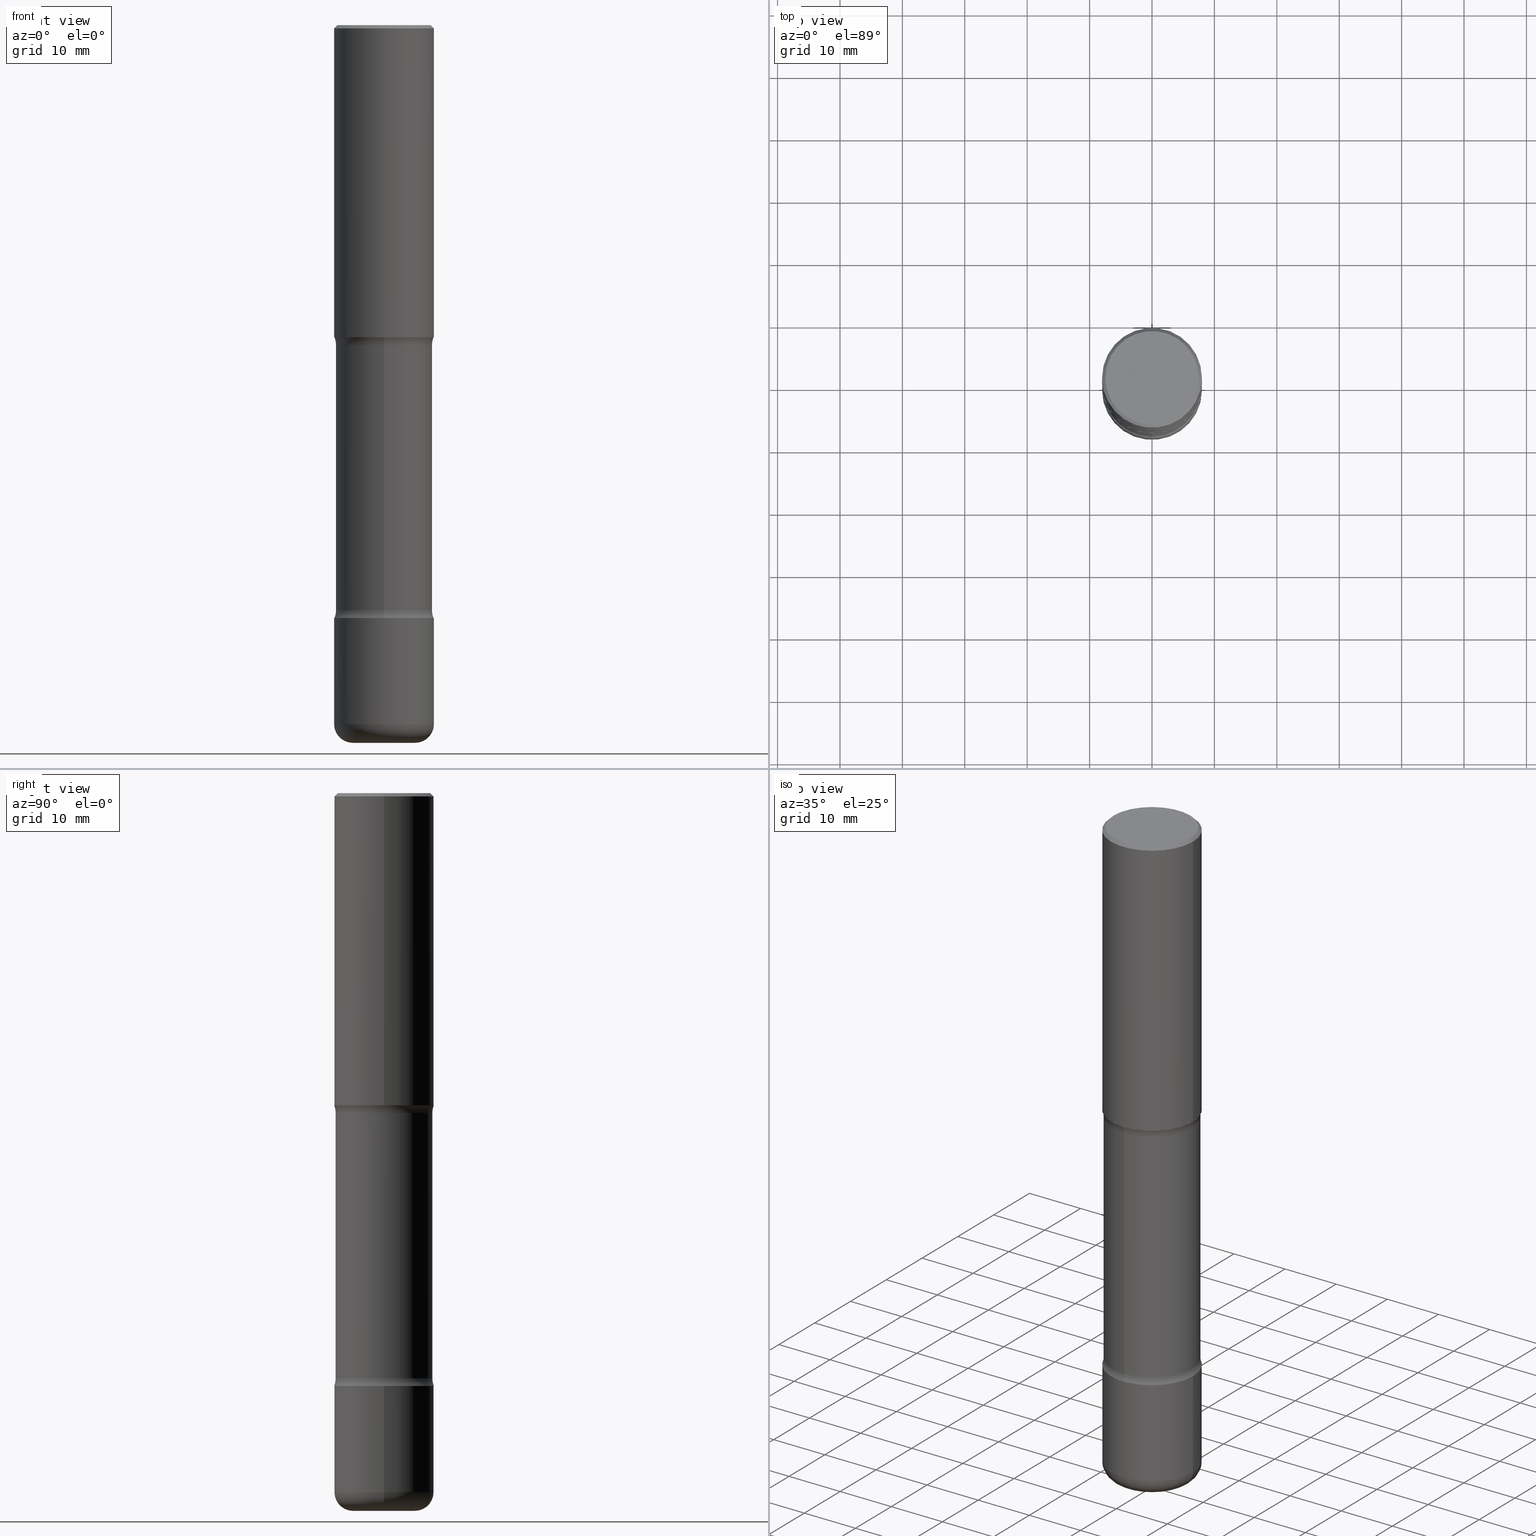
[diagram: canonical four-view strip — front | top / right | iso, engineering-drawing reading convention]
A machine part, canonical four-view strip (front | top / right | iso — engineering-drawing reading convention). The complete STEP part file that produces these views, byte-faithful:
ISO-10303-21;
HEADER;
FILE_DESCRIPTION (( 'STEP AP203' ),
    '1' );
FILE_NAME ('46833.STEP',
    '2024-03-02T05:43:08',
    ( '' ),
    ( '' ),
    'SwSTEP 2.0',
    'SolidWorks 2023',
    '' );
FILE_SCHEMA (( 'CONFIG_CONTROL_DESIGN' ));
ENDSEC;

DATA;
#1 = ADVANCED_FACE ( 'NONE', ( #428 ), #474, .F. ) ;
#2 = DIRECTION ( 'NONE',  ( 6.982962677686265922E-15, 1.000000000000000000, -3.469564049740289220E-15 ) ) ;
#3 = AXIS2_PLACEMENT_3D ( 'NONE', #219, #385, #520 ) ;
#4 = COORDINATED_UNIVERSAL_TIME_OFFSET ( 5, 0, .BEHIND. ) ;
#5 = ADVANCED_FACE ( 'NONE', ( #7 ), #224, .T. ) ;
#6 = CARTESIAN_POINT ( 'NONE',  ( 4.615694768568605168E-29, -1.954727023296045315E-14, -3.740200000000000635 ) ) ;
#7 = FACE_OUTER_BOUND ( 'NONE', #116, .T. ) ;
#8 = CARTESIAN_POINT ( 'NONE',  ( 9.146542428893650504E-29, -1.305883850354113594E-14, -3.740200000000000635 ) ) ;
#9 = DIRECTION ( 'NONE',  ( 2.508997697352003204E-29, -3.400504350852260021E-15, -1.000000000000000000 ) ) ;
#10 = TOROIDAL_SURFACE ( 'NONE', #460, 0.4299999999999999378, 0.1250000000000000000 ) ;
#11 = CYLINDRICAL_SURFACE ( 'NONE', #312, 0.3049999999999999378 ) ;
#12 = MANIFOLD_SOLID_BREP ( 'Body-Move/Copy2[1]', #554 ) ;
#13 = CARTESIAN_POINT ( 'NONE',  ( -0.3149500000000002853, -1.315783261735241693E-14, -4.409500000000000419 ) ) ;
#14 = CARTESIAN_POINT ( 'NONE',  ( 4.813905344975441835E-29, -6.872981015512731707E-15, -1.968500000000000139 ) ) ;
#15 = DIRECTION ( 'NONE',  ( 2.508997697352003204E-29, -3.400504350852260021E-15, -1.000000000000000000 ) ) ;
#16 = CARTESIAN_POINT ( 'NONE',  ( -3.131554243005659264E-46, 4.471029511141341874E-32, 1.280553747030123384E-17 ) ) ;
#17 = VECTOR ( 'NONE', #315, 39.37007874015748143 ) ;
#18 = EDGE_CURVE ( 'NONE', #119, #262, #395, .T. ) ;
#19 = FACE_OUTER_BOUND ( 'NONE', #172, .T. ) ;
#20 = DIRECTION ( 'NONE',  ( 1.000000000000000000, -6.982962677686266711E-15, 0.000000000000000000 ) ) ;
#21 = CARTESIAN_POINT ( 'NONE',  ( 0.000000000000000000, 0.000000000000000000, 0.000000000000000000 ) ) ;
#22 = AXIS2_PLACEMENT_3D ( 'NONE', #50, #529, #229 ) ;
#23 = VECTOR ( 'NONE', #220, 39.37007874015748143 ) ;
#24 = AXIS2_PLACEMENT_3D ( 'NONE', #71, #161, #383 ) ;
#25 = LOCAL_TIME ( 0, 43, 8.000000000000000000, #256 ) ;
#26 = EDGE_LOOP ( 'NONE', ( #548, #381, #397, #86 ) ) ;
#27 = CALENDAR_DATE ( 2024, 2, 3 ) ;
#28 = ORIENTED_EDGE ( 'NONE', *, *, #409, .T. ) ;
#29 = APPROVAL ( #549, 'UNSPECIFIED' ) ;
#30 = ORIENTED_EDGE ( 'NONE', *, *, #506, .F. ) ;
#31 = CARTESIAN_POINT ( 'NONE',  ( -0.1968500000000003303, -1.399698358828509276E-14, -4.409500000000000419 ) ) ;
#32 = ADVANCED_FACE ( 'NONE', ( #145 ), #174, .F. ) ;
#33 = PERSON_AND_ORGANIZATION ( #327, #394 ) ;
#34 = EDGE_LOOP ( 'NONE', ( #329, #30, #53, #435 ) ) ;
#35 = CIRCLE ( 'NONE', #413, 0.2949499999999998234 ) ;
#36 = DIRECTION ( 'NONE',  ( 0.000000000000000000, 0.000000000000000000, 1.000000000000000000 ) ) ;
#37 = ORIENTED_EDGE ( 'NONE', *, *, #409, .F. ) ;
#38 = CARTESIAN_POINT ( 'NONE',  ( -2.950014139041668531E-15, -0.4300000000000129829, -3.691327743043725906 ) ) ;
#39 = FACE_OUTER_BOUND ( 'NONE', #243, .T. ) ;
#40 = APPROVAL_ROLE ( '' ) ;
#41 = ORIENTED_EDGE ( 'NONE', *, *, #285, .F. ) ;
#42 = ORIENTED_EDGE ( 'NONE', *, *, #45, .F. ) ;
#43 = LINE ( 'NONE', #318, #110 ) ;
#44 = CARTESIAN_POINT ( 'NONE',  ( 2.129803616694400804E-15, 0.3049999999999870037, -3.691327743043728571 ) ) ;
#45 = EDGE_CURVE ( 'NONE', #387, #462, #411, .T. ) ;
#46 = DIRECTION ( 'NONE',  ( -6.982962677686265133E-15, -1.000000000000000000, 0.000000000000000000 ) ) ;
#47 = EDGE_CURVE ( 'NONE', #517, #195, #166, .T. ) ;
#48 = CIRCLE ( 'NONE', #201, 0.1250000000000000278 ) ;
#49 = CC_DESIGN_PERSON_AND_ORGANIZATION_ASSIGNMENT ( #457, #544, ( #244 ) ) ;
#50 = CARTESIAN_POINT ( 'NONE',  ( 9.027026849019219293E-29, -1.288820193039116093E-14, -3.691327743043727239 ) ) ;
#51 = CARTESIAN_POINT ( 'NONE',  ( 1.107210456688382522E-28, -1.580803090974622705E-14, -4.527600000000000513 ) ) ;
#52 = DATE_AND_TIME ( #532, #270 ) ;
#53 = ORIENTED_EDGE ( 'NONE', *, *, #259, .T. ) ;
#54 = DIRECTION ( 'NONE',  ( 1.000000000000000000, -6.982962677686269866E-15, 0.000000000000000000 ) ) ;
#55 = CC_DESIGN_PERSON_AND_ORGANIZATION_ASSIGNMENT ( #204, #127, ( #114 ) ) ;
#56 = CIRCLE ( 'NONE', #370, 0.3149500000000002298 ) ;
#57 = AXIS2_PLACEMENT_3D ( 'NONE', #97, #458, #125 ) ;
#58 = CARTESIAN_POINT ( 'NONE',  ( 4.813905344975441835E-29, -6.872981015512731707E-15, -1.968500000000000139 ) ) ;
#59 = CIRCLE ( 'NONE', #335, 0.2949499999999998234 ) ;
#60 = EDGE_CURVE ( 'NONE', #439, #558, #108, .T. ) ;
#61 = DIRECTION ( 'NONE',  ( 1.000000000000000000, -6.982962677686263555E-15, 4.883557194083111780E-29 ) ) ;
#62 = DIRECTION ( 'NONE',  ( 6.982962677686266711E-15, 1.000000000000000000, -3.582751467100674095E-15 ) ) ;
#63 = EDGE_CURVE ( 'NONE', #337, #340, #186, .T. ) ;
#64 = AXIS2_PLACEMENT_3D ( 'NONE', #343, #9, #523 ) ;
#65 = DIRECTION ( 'NONE',  ( 2.508997697352003204E-29, -3.400504350852260021E-15, -1.000000000000000000 ) ) ;
#66 = AXIS2_PLACEMENT_3D ( 'NONE', #276, #320, #366 ) ;
#67 = AXIS2_PLACEMENT_3D ( 'NONE', #317, #379, #505 ) ;
#68 = ORIENTED_EDGE ( 'NONE', *, *, #102, .F. ) ;
#69 = APPLICATION_PROTOCOL_DEFINITION ( 'international standard', 'config_control_design', 1994, #142 ) ;
#70 = EDGE_LOOP ( 'NONE', ( #128, #513, #123, #519 ) ) ;
#71 = CARTESIAN_POINT ( 'NONE',  ( 0.1968500000000003303, -1.677028316673139768E-14, -4.409500000000000419 ) ) ;
#72 = CONICAL_SURFACE ( 'NONE', #214, 0.3149499999999998967, 0.7853981633974477239 ) ;
#73 = CARTESIAN_POINT ( 'NONE',  ( -2.126582866859184041E-15, -0.3050000000000072098, -2.017372256956273535 ) ) ;
#74 = VERTEX_POINT ( 'NONE', #44 ) ;
#75 = APPROVAL_DATE_TIME ( #464, #29 ) ;
#76 = EDGE_LOOP ( 'NONE', ( #467, #477, #510, #68 ) ) ;
#77 = CYLINDRICAL_SURFACE ( 'NONE', #484, 0.3149500000000002853 ) ;
#78 = ORIENTED_EDGE ( 'NONE', *, *, #451, .T. ) ;
#79 = PERSON_AND_ORGANIZATION ( #327, #394 ) ;
#80 = ORIENTED_EDGE ( 'NONE', *, *, #18, .T. ) ;
#81 = ORIENTED_EDGE ( 'NONE', *, *, #471, .F. ) ;
#82 = DIRECTION ( 'NONE',  ( 1.000000000000000000, -6.982962677686267499E-15, 4.876176775795936353E-29 ) ) ;
#83 = CIRCLE ( 'NONE', #403, 0.3149500000000002298 ) ;
#84 = AXIS2_PLACEMENT_3D ( 'NONE', #363, #536, #61 ) ;
#85 = APPROVAL_DATE_TIME ( #52, #307 ) ;
#86 = ORIENTED_EDGE ( 'NONE', *, *, #202, .F. ) ;
#87 = DIRECTION ( 'NONE',  ( 2.508997697352003204E-29, -3.400504350852260021E-15, -1.000000000000000000 ) ) ;
#88 = EDGE_CURVE ( 'NONE', #470, #287, #83, .T. ) ;
#89 = CARTESIAN_POINT ( 'NONE',  ( 2.296867071415666507E-29, -2.837467045875745410E-14, -4.527600000000000513 ) ) ;
#90 = DIRECTION ( 'NONE',  ( -2.508997697352002923E-29, 3.400504350852260021E-15, 1.000000000000000000 ) ) ;
#91 = CIRCLE ( 'NONE', #436, 0.3149500000000001743 ) ;
#92 = VERTEX_POINT ( 'NONE', #305 ) ;
#93 = CARTESIAN_POINT ( 'NONE',  ( 0.2949499999999998234, -2.127023677808859286E-15, 1.280553747031587399E-17 ) ) ;
#94 = EDGE_CURVE ( 'NONE', #439, #74, #268, .T. ) ;
#95 = CARTESIAN_POINT ( 'NONE',  ( -2.160713844398053432E-15, -0.3149500000000131639, -3.740199999999999747 ) ) ;
#96 = EDGE_LOOP ( 'NONE', ( #212, #222, #273, #426 ) ) ;
#97 = CARTESIAN_POINT ( 'NONE',  ( 4.813905344975441835E-29, -6.872981015512731707E-15, -1.968500000000000139 ) ) ;
#98 = ADVANCED_FACE ( 'NONE', ( #443 ), #543, .F. ) ;
#99 = CIRCLE ( 'NONE', #372, 0.3049999999999998823 ) ;
#100 = VECTOR ( 'NONE', #534, 39.37007874015748143 ) ;
#101 = DIRECTION ( 'NONE',  ( -2.445468806185136597E-29, 3.491481338843145583E-15, 1.000000000000000000 ) ) ;
#102 = EDGE_CURVE ( 'NONE', #287, #470, #56, .T. ) ;
#103 = DIRECTION ( 'NONE',  ( 2.445468806185136597E-29, -3.491481338843145583E-15, -1.000000000000000000 ) ) ;
#104 = DIRECTION ( 'NONE',  ( -2.445468806185136597E-29, 3.491481338843145583E-15, 1.000000000000000000 ) ) ;
#105 = CARTESIAN_POINT ( 'NONE',  ( 1.078329470087336022E-28, -1.539568696362885450E-14, -4.409500000000000419 ) ) ;
#106 = ORIENTED_EDGE ( 'NONE', *, *, #259, .F. ) ;
#107 = CYLINDRICAL_SURFACE ( 'NONE', #167, 0.3149500000000000077 ) ;
#108 = CIRCLE ( 'NONE', #433, 0.3049999999999999933 ) ;
#109 = DIRECTION ( 'NONE',  ( 6.860497997771529985E-15, 1.000000000000000000, 0.000000000000000000 ) ) ;
#110 = VECTOR ( 'NONE', #188, 39.37007874015748143 ) ;
#111 = AXIS2_PLACEMENT_3D ( 'NONE', #516, #211, #286 ) ;
#112 =( LENGTH_UNIT ( ) NAMED_UNIT ( * ) SI_UNIT ( $, .METRE. ) );
#113 = FACE_OUTER_BOUND ( 'NONE', #76, .T. ) ;
#114 = PRODUCT_DEFINITION ( 'UNKNOWN', '', #278, #497 ) ;
#115 = APPROVAL_ROLE ( '' ) ;
#116 = EDGE_LOOP ( 'NONE', ( #126, #437, #218, #297 ) ) ;
#117 = EDGE_CURVE ( 'NONE', #488, #170, #267, .T. ) ;
#118 = EDGE_LOOP ( 'NONE', ( #465, #80, #189, #552 ) ) ;
#119 = VERTEX_POINT ( 'NONE', #140 ) ;
#120 = CIRCLE ( 'NONE', #442, 0.3049999999999998823 ) ;
#121 = APPROVAL_PERSON_ORGANIZATION ( #461, #29, #247 ) ;
#122 = PERSON_AND_ORGANIZATION ( #327, #394 ) ;
#123 = ORIENTED_EDGE ( 'NONE', *, *, #508, .T. ) ;
#124 = EDGE_CURVE ( 'NONE', #518, #351, #325, .T. ) ;
#125 = DIRECTION ( 'NONE',  ( 6.982962677686265922E-15, 1.000000000000000000, -3.400504350852260021E-15 ) ) ;
#126 = ORIENTED_EDGE ( 'NONE', *, *, #63, .T. ) ;
#127 = PERSON_AND_ORGANIZATION_ROLE ( 'creator' ) ;
#128 = ORIENTED_EDGE ( 'NONE', *, *, #282, .F. ) ;
#129 = CARTESIAN_POINT ( 'NONE',  ( 0.3149499999999998967, -2.230543471175006266E-15, -0.02000000000000006981 ) ) ;
#130 = EDGE_LOOP ( 'NONE', ( #515, #376, #265, #388 ) ) ;
#131 = EDGE_LOOP ( 'NONE', ( #81, #504 ) ) ;
#132 = CARTESIAN_POINT ( 'NONE',  ( 2.199284095337382168E-15, 0.3149499999999870181, -3.740200000000001967 ) ) ;
#133 = ADVANCED_FACE ( 'NONE', ( #441 ), #357, .F. ) ;
#134 = CARTESIAN_POINT ( 'NONE',  ( 4.823971588662791399E-29, -7.200355267551965208E-15, -2.017372256956274423 ) ) ;
#135 = CC_DESIGN_APPROVAL ( #29, ( #114 ) ) ;
#136 = ORIENTED_EDGE ( 'NONE', *, *, #492, .T. ) ;
#137 = ADVANCED_BREP_SHAPE_REPRESENTATION ( '46833', ( #12, #198, #217, #374 ), #438 ) ;
#138 = DIRECTION ( 'NONE',  ( -6.982962677686265922E-15, -1.000000000000000000, 3.400504350852260021E-15 ) ) ;
#139 = FACE_OUTER_BOUND ( 'NONE', #34, .T. ) ;
#140 = CARTESIAN_POINT ( 'NONE',  ( -0.3149500000000001743, -1.233550974868359743E-15, -1.968500000000000139 ) ) ;
#141 = AXIS2_PLACEMENT_3D ( 'NONE', #171, #503, #418 ) ;
#142 = APPLICATION_CONTEXT ( 'configuration controlled 3d designs of mechanical parts and assemblies' ) ;
#143 = AXIS2_PLACEMENT_3D ( 'NONE', #514, #103, #498 ) ;
#144 = DIRECTION ( 'NONE',  ( 2.508997697352003204E-29, -3.400504350852260021E-15, -1.000000000000000000 ) ) ;
#145 = FACE_OUTER_BOUND ( 'NONE', #216, .T. ) ;
#146 = DIRECTION ( 'NONE',  ( 1.000000000000000000, -6.982962677686267499E-15, 4.876053491004737710E-29 ) ) ;
#147 = CC_DESIGN_DATE_AND_TIME_ASSIGNMENT ( #425, #246, ( #114 ) ) ;
#148 = CARTESIAN_POINT ( 'NONE',  ( -0.3149499999999998967, 2.129454468560425784E-15, -0.02000000000000006981 ) ) ;
#149 = EDGE_CURVE ( 'NONE', #195, #74, #345, .T. ) ;
#150 = CIRCLE ( 'NONE', #450, 0.1968500000000003303 ) ;
#151 = APPROVAL_PERSON_ORGANIZATION ( #314, #307, #40 ) ;
#152 = FACE_OUTER_BOUND ( 'NONE', #559, .T. ) ;
#153 = CC_DESIGN_PERSON_AND_ORGANIZATION_ASSIGNMENT ( #33, #469, ( #278 ) ) ;
#154 = FACE_OUTER_BOUND ( 'NONE', #96, .T. ) ;
#155 = DIRECTION ( 'NONE',  ( 2.508997697352003204E-29, -3.400504350852260021E-15, -1.000000000000000000 ) ) ;
#156 = EDGE_LOOP ( 'NONE', ( #430, #344 ) ) ;
#157 = AXIS2_PLACEMENT_3D ( 'NONE', #530, #90, #138 ) ;
#158 = COORDINATED_UNIVERSAL_TIME_OFFSET ( 5, 0, .BEHIND. ) ;
#159 = ADVANCED_FACE ( 'NONE', ( #354 ), #352, .F. ) ;
#160 = ORIENTED_EDGE ( 'NONE', *, *, #416, .F. ) ;
#161 = DIRECTION ( 'NONE',  ( -6.982962677686266711E-15, -1.000000000000000000, 3.491481338843145583E-15 ) ) ;
#162 = EDGE_CURVE ( 'NONE', #517, #92, #48, .T. ) ;
#163 = COORDINATED_UNIVERSAL_TIME_OFFSET ( 5, 0, .BEHIND. ) ;
#164 = ORIENTED_EDGE ( 'NONE', *, *, #124, .F. ) ;
#165 = VERTEX_POINT ( 'NONE', #93 ) ;
#166 = CIRCLE ( 'NONE', #64, 0.3149500000000002298 ) ;
#167 = AXIS2_PLACEMENT_3D ( 'NONE', #232, #447, #192 ) ;
#168 = AXIS2_PLACEMENT_3D ( 'NONE', #238, #236, #197 ) ;
#169 =( NAMED_UNIT ( * ) SI_UNIT ( $, .STERADIAN. ) SOLID_ANGLE_UNIT ( ) );
#170 = VERTEX_POINT ( 'NONE', #440 ) ;
#171 = CARTESIAN_POINT ( 'NONE',  ( 1.078329470087336022E-28, -1.539568696362885450E-14, -4.409500000000000419 ) ) ;
#172 = EDGE_LOOP ( 'NONE', ( #227, #339, #378, #298 ) ) ;
#173 = DIRECTION ( 'NONE',  ( -2.445468806185136597E-29, 3.491481338843145583E-15, 1.000000000000000000 ) ) ;
#174 = PLANE ( 'NONE',  #449 ) ;
#175 = DIRECTION ( 'NONE',  ( 6.982962677686265922E-15, 1.000000000000000000, -3.400504350852260021E-15 ) ) ;
#176 = CC_DESIGN_PERSON_AND_ORGANIZATION_ASSIGNMENT ( #122, #377, ( #399 ) ) ;
#177 = AXIS2_PLACEMENT_3D ( 'NONE', #410, #245, #109 ) ;
#178 = FACE_OUTER_BOUND ( 'NONE', #338, .T. ) ;
#179 = DIRECTION ( 'NONE',  ( 6.982962677686266711E-15, 1.000000000000000000, -3.582751467100673306E-15 ) ) ;
#180 = FACE_OUTER_BOUND ( 'NONE', #257, .T. ) ;
#181 = DIRECTION ( 'NONE',  ( 2.508997697352003204E-29, -3.400504350852260021E-15, -1.000000000000000000 ) ) ;
#182 = DIRECTION ( 'NONE',  ( 2.438088387897960049E-29, -3.491481338843145188E-15, -1.000000000000000000 ) ) ;
#183 = DIRECTION ( 'NONE',  ( 1.000000000000000000, -6.982962677686265922E-15, 0.000000000000000000 ) ) ;
#184 = EDGE_CURVE ( 'NONE', #558, #92, #271, .T. ) ;
#185 = DIRECTION ( 'NONE',  ( 1.000000000000000000, -6.982962677686264344E-15, 0.000000000000000000 ) ) ;
#186 = CIRCLE ( 'NONE', #324, 0.3149500000000002853 ) ;
#187 = CIRCLE ( 'NONE', #66, 0.3149500000000002298 ) ;
#188 = DIRECTION ( 'NONE',  ( -2.445468806185136877E-29, 3.491481338843145188E-15, 1.000000000000000000 ) ) ;
#189 = ORIENTED_EDGE ( 'NONE', *, *, #492, .F. ) ;
#190 = FACE_OUTER_BOUND ( 'NONE', #131, .T. ) ;
#191 = EDGE_CURVE ( 'NONE', #262, #170, #277, .T. ) ;
#192 = DIRECTION ( 'NONE',  ( 1.000000000000000000, -6.982962677686266711E-15, 4.876176775795936353E-29 ) ) ;
#193 = AXIS2_PLACEMENT_3D ( 'NONE', #496, #240, #495 ) ;
#194 = CC_DESIGN_SECURITY_CLASSIFICATION ( #244, ( #278 ) ) ;
#195 = VERTEX_POINT ( 'NONE', #132 ) ;
#196 = CARTESIAN_POINT ( 'NONE',  ( 0.3149500000000002853, -1.759497105896614279E-14, -4.409500000000000419 ) ) ;
#197 = DIRECTION ( 'NONE',  ( 6.982962677686266711E-15, 1.000000000000000000, -3.582751467100674095E-15 ) ) ;
#198 = MANIFOLD_SOLID_BREP ( 'Body-Move/Copy2[2]', #538 ) ;
#199 = CARTESIAN_POINT ( 'NONE',  ( 0.000000000000000000, 0.000000000000000000, 0.000000000000000000 ) ) ;
#200 = DIRECTION ( 'NONE',  ( -2.445468806185136597E-29, 3.491481338843145583E-15, 1.000000000000000000 ) ) ;
#201 = AXIS2_PLACEMENT_3D ( 'NONE', #38, #485, #230 ) ;
#202 = EDGE_CURVE ( 'NONE', #92, #74, #99, .T. ) ;
#203 = LOCAL_TIME ( 0, 43, 8.000000000000000000, #429 ) ;
#204 = PERSON_AND_ORGANIZATION ( #327, #394 ) ;
#205 = ORIENTED_EDGE ( 'NONE', *, *, #102, .T. ) ;
#206 = CARTESIAN_POINT ( 'NONE',  ( 2.129803616694359388E-15, 0.3049999999999927769, -2.017372256956275756 ) ) ;
#207 = EDGE_CURVE ( 'NONE', #340, #287, #43, .T. ) ;
#208 = ORIENTED_EDGE ( 'NONE', *, *, #45, .T. ) ;
#209 = ORIENTED_EDGE ( 'NONE', *, *, #228, .F. ) ;
#210 = CARTESIAN_POINT ( 'NONE',  ( -0.1968500000000003303, -1.378358007587744270E-14, -4.527600000000000513 ) ) ;
#211 = DIRECTION ( 'NONE',  ( 2.438088387897960049E-29, -3.491481338843145188E-15, -1.000000000000000000 ) ) ;
#212 = ORIENTED_EDGE ( 'NONE', *, *, #18, .F. ) ;
#213 = CLOSED_SHELL ( 'NONE', ( #380, #1, #483, #98, #390, #159, #133, #531 ) ) ;
#214 = AXIS2_PLACEMENT_3D ( 'NONE', #288, #466, #369 ) ;
#215 = APPLICATION_PROTOCOL_DEFINITION ( 'international standard', 'config_control_design', 1994, #509 ) ;
#216 = EDGE_LOOP ( 'NONE', ( #405, #205 ) ) ;
#217 = MANIFOLD_SOLID_BREP ( 'Body-Move/Copy2[4]', #213 ) ;
#218 = ORIENTED_EDGE ( 'NONE', *, *, #88, .F. ) ;
#219 = CARTESIAN_POINT ( 'NONE',  ( 4.890937612370289799E-31, -6.982962677686315028E-17, -0.02000000000000006981 ) ) ;
#220 = DIRECTION ( 'NONE',  ( -2.445468806185136877E-29, 3.491481338843145188E-15, 1.000000000000000000 ) ) ;
#221 = ORIENTED_EDGE ( 'NONE', *, *, #371, .F. ) ;
#222 = ORIENTED_EDGE ( 'NONE', *, *, #255, .T. ) ;
#223 = CARTESIAN_POINT ( 'NONE',  ( 3.002673951405185326E-15, 0.4299999999999871703, -3.691327743043729015 ) ) ;
#224 = CYLINDRICAL_SURFACE ( 'NONE', #311, 0.3149500000000002853 ) ;
#225 = CIRCLE ( 'NONE', #313, 0.3149499999999998967 ) ;
#226 = CARTESIAN_POINT ( 'NONE',  ( 4.838038961945526824E-29, -7.180209988345925109E-15, -2.017372256956274423 ) ) ;
#227 = ORIENTED_EDGE ( 'NONE', *, *, #60, .T. ) ;
#228 = EDGE_CURVE ( 'NONE', #558, #439, #365, .T. ) ;
#229 = DIRECTION ( 'NONE',  ( 6.982962677686265922E-15, 1.000000000000000000, -3.400504350852260021E-15 ) ) ;
#230 = DIRECTION ( 'NONE',  ( 6.860497997771529985E-15, 1.000000000000000000, 0.000000000000000000 ) ) ;
#231 = DATE_TIME_ROLE ( 'classification_date' ) ;
#232 = CARTESIAN_POINT ( 'NONE',  ( 0.000000000000000000, 0.000000000000000000, 0.000000000000000000 ) ) ;
#233 = VECTOR ( 'NONE', #303, 39.37007874015748143 ) ;
#234 = CIRCLE ( 'NONE', #242, 0.3149500000000001743 ) ;
#235 = CONICAL_SURFACE ( 'NONE', #143, 0.3149499999999998967, 0.7853981633974477239 ) ;
#236 = DIRECTION ( 'NONE',  ( 2.508997697352003204E-29, -3.400504350852260021E-15, -1.000000000000000000 ) ) ;
#237 = CARTESIAN_POINT ( 'NONE',  ( -0.3149499999999998967, 2.129454468560425784E-15, -0.02000000000000006981 ) ) ;
#238 = CARTESIAN_POINT ( 'NONE',  ( 1.112212721578861617E-28, -1.573639562940220266E-14, -4.527600000000000513 ) ) ;
#239 = LINE ( 'NONE', #408, #419 ) ;
#240 = DIRECTION ( 'NONE',  ( 2.508997697352003204E-29, -3.400504350852260021E-15, -1.000000000000000000 ) ) ;
#241 = DIRECTION ( 'NONE',  ( -2.445468806185136597E-29, 3.491481338843145583E-15, 1.000000000000000000 ) ) ;
#242 = AXIS2_PLACEMENT_3D ( 'NONE', #14, #101, #54 ) ;
#243 = EDGE_LOOP ( 'NONE', ( #333, #258, #28, #160 ) ) ;
#244 = SECURITY_CLASSIFICATION ( '', '', #501 ) ;
#245 = DIRECTION ( 'NONE',  ( 1.000000000000000000, -6.860497997771530774E-15, 4.841913026395534193E-29 ) ) ;
#246 = DATE_TIME_ROLE ( 'creation_date' ) ;
#247 = APPROVAL_ROLE ( '' ) ;
#248 = EDGE_CURVE ( 'NONE', #337, #470, #239, .T. ) ;
#249 = AXIS2_PLACEMENT_3D ( 'NONE', #341, #181, #300 ) ;
#250 = ORIENTED_EDGE ( 'NONE', *, *, #444, .F. ) ;
#251 = EDGE_CURVE ( 'NONE', #74, #92, #120, .T. ) ;
#252 =( CONVERSION_BASED_UNIT ( 'INCH', #557 ) LENGTH_UNIT ( ) NAMED_UNIT ( #528 ) );
#253 = PERSON_AND_ORGANIZATION ( #327, #394 ) ;
#254 = CARTESIAN_POINT ( 'NONE',  ( 2.199284095337339175E-15, 0.3149499999999932909, -1.968500000000001249 ) ) ;
#255 = EDGE_CURVE ( 'NONE', #119, #488, #234, .T. ) ;
#256 = COORDINATED_UNIVERSAL_TIME_OFFSET ( 5, 0, .BEHIND. ) ;
#257 = EDGE_LOOP ( 'NONE', ( #250, #164 ) ) ;
#258 = ORIENTED_EDGE ( 'NONE', *, *, #124, .T. ) ;
#259 = EDGE_CURVE ( 'NONE', #431, #262, #407, .T. ) ;
#260 = AXIS2_PLACEMENT_3D ( 'NONE', #89, #359, #386 ) ;
#261 = DIRECTION ( 'NONE',  ( 1.000000000000000000, -6.982962677686267499E-15, 4.876053491004737710E-29 ) ) ;
#262 = VERTEX_POINT ( 'NONE', #148 ) ;
#263 = DIRECTION ( 'NONE',  ( 6.982962677686266711E-15, 1.000000000000000000, -3.582751467100674095E-15 ) ) ;
#264 = CARTESIAN_POINT ( 'NONE',  ( 4.890937612370289799E-31, -6.982962677686315028E-17, -0.02000000000000006981 ) ) ;
#265 = ORIENTED_EDGE ( 'NONE', *, *, #149, .T. ) ;
#266 = DIRECTION ( 'NONE',  ( 1.000000000000000000, -6.982962677686269866E-15, 0.000000000000000000 ) ) ;
#267 = LINE ( 'NONE', #398, #17 ) ;
#268 = LINE ( 'NONE', #482, #233 ) ;
#269 = AXIS2_PLACEMENT_3D ( 'NONE', #31, #553, #342 ) ;
#270 = LOCAL_TIME ( 0, 43, 8.000000000000000000, #4 ) ;
#271 = LINE ( 'NONE', #400, #100 ) ;
#272 = DIRECTION ( 'NONE',  ( 1.000000000000000000, -6.982962677686267499E-15, 4.876176775795936353E-29 ) ) ;
#273 = ORIENTED_EDGE ( 'NONE', *, *, #117, .T. ) ;
#274 = CARTESIAN_POINT ( 'NONE',  ( 4.813905344975441835E-29, -6.872981015512731707E-15, -1.968500000000000139 ) ) ;
#275 = CARTESIAN_POINT ( 'NONE',  ( 1.078329470087336022E-28, -1.539568696362885450E-14, -4.409500000000000419 ) ) ;
#276 = CARTESIAN_POINT ( 'NONE',  ( 9.146542428893650504E-29, -1.305883850354113594E-14, -3.740200000000000635 ) ) ;
#277 = CIRCLE ( 'NONE', #3, 0.3149499999999998967 ) ;
#278 = PRODUCT_DEFINITION_FORMATION_WITH_SPECIFIED_SOURCE ( 'ANY', '', #399, .NOT_KNOWN. ) ;
#279 = CARTESIAN_POINT ( 'NONE',  ( 0.000000000000000000, 0.000000000000000000, 0.000000000000000000 ) ) ;
#280 = DIRECTION ( 'NONE',  ( 1.000000000000000000, -6.982962677686265922E-15, 4.876176775795935793E-29 ) ) ;
#281 = DIRECTION ( 'NONE',  ( -2.445468806185136597E-29, 3.491481338843145583E-15, 1.000000000000000000 ) ) ;
#282 = EDGE_CURVE ( 'NONE', #558, #387, #404, .T. ) ;
#283 = ORIENTED_EDGE ( 'NONE', *, *, #63, .F. ) ;
#284 = UNCERTAINTY_MEASURE_WITH_UNIT (LENGTH_MEASURE( 1.000000000000000082E-05 ), #252, 'distance_accuracy_value', 'NONE');
#285 = EDGE_CURVE ( 'NONE', #165, #431, #35, .T. ) ;
#286 = DIRECTION ( 'NONE',  ( -1.000000000000000000, 6.982962677686265922E-15, -4.876176775795935793E-29 ) ) ;
#287 = VERTEX_POINT ( 'NONE', #541 ) ;
#288 = CARTESIAN_POINT ( 'NONE',  ( 4.890937612370289799E-31, -6.982962677686315028E-17, -0.02000000000000006981 ) ) ;
#289 =( NAMED_UNIT ( * ) PLANE_ANGLE_UNIT ( ) SI_UNIT ( $, .RADIAN. ) );
#290 = EDGE_LOOP ( 'NONE', ( #221, #42 ) ) ;
#291 = AXIS2_PLACEMENT_3D ( 'NONE', #58, #490, #280 ) ;
#292 = ORIENTED_EDGE ( 'NONE', *, *, #47, .F. ) ;
#293 = DIRECTION ( 'NONE',  ( 1.000000000000000000, 0.000000000000000000, 0.000000000000000000 ) ) ;
#294 = ORIENTED_EDGE ( 'NONE', *, *, #282, .T. ) ;
#295 = APPROVAL_STATUS ( 'not_yet_approved' ) ;
#296 = EDGE_LOOP ( 'NONE', ( #41, #78, #136, #106 ) ) ;
#297 = ORIENTED_EDGE ( 'NONE', *, *, #248, .F. ) ;
#298 = ORIENTED_EDGE ( 'NONE', *, *, #94, .F. ) ;
#299 = AXIS2_PLACEMENT_3D ( 'NONE', #346, #144, #175 ) ;
#300 = DIRECTION ( 'NONE',  ( 6.982962677686265922E-15, 1.000000000000000000, -3.400504350852260021E-15 ) ) ;
#301 = AXIS2_PLACEMENT_3D ( 'NONE', #279, #281, #542 ) ;
#302 = CARTESIAN_POINT ( 'NONE',  ( 0.000000000000000000, 0.000000000000000000, 0.000000000000000000 ) ) ;
#303 = DIRECTION ( 'NONE',  ( 2.508997697352003204E-29, -3.400504350852260021E-15, -1.000000000000000000 ) ) ;
#304 = ADVANCED_FACE ( 'NONE', ( #154 ), #107, .T. ) ;
#305 = CARTESIAN_POINT ( 'NONE',  ( -2.126582866859139076E-15, -0.3050000000000128164, -3.691327743043726350 ) ) ;
#306 = APPROVAL_STATUS ( 'not_yet_approved' ) ;
#307 = APPROVAL ( #306, 'UNSPECIFIED' ) ;
#308 = PRODUCT_DEFINITION_SHAPE ( 'NONE', 'NONE',  #114 ) ;
#309 = CARTESIAN_POINT ( 'NONE',  ( -0.2949499999999998234, 2.094539655171994135E-15, 1.280553747028670770E-17 ) ) ;
#310 = DIRECTION ( 'NONE',  ( 1.000000000000000000, -6.982962677686266711E-15, 0.000000000000000000 ) ) ;
#311 = AXIS2_PLACEMENT_3D ( 'NONE', #302, #487, #272 ) ;
#312 = AXIS2_PLACEMENT_3D ( 'NONE', #360, #452, #535 ) ;
#313 = AXIS2_PLACEMENT_3D ( 'NONE', #264, #476, #183 ) ;
#314 = PERSON_AND_ORGANIZATION ( #327, #394 ) ;
#315 = DIRECTION ( 'NONE',  ( -2.445468806185136877E-29, 3.491481338843145188E-15, 1.000000000000000000 ) ) ;
#316 = CARTESIAN_POINT ( 'NONE',  ( -2.160713844398098792E-15, -0.3149500000000073907, -1.968499999999999028 ) ) ;
#317 = CARTESIAN_POINT ( 'NONE',  ( 3.002673951405142333E-15, 0.4299999999999927769, -2.017372256956275756 ) ) ;
#318 = CARTESIAN_POINT ( 'NONE',  ( -0.3149500000000002853, 2.237854346276437562E-15, -1.549218606675783797E-29 ) ) ;
#319 = ADVANCED_FACE ( 'NONE', ( #152 ), #540, .T. ) ;
#320 = DIRECTION ( 'NONE',  ( 2.508997697352003204E-29, -3.400504350852260021E-15, -1.000000000000000000 ) ) ;
#321 = EDGE_CURVE ( 'NONE', #195, #517, #187, .T. ) ;
#322 = CYLINDRICAL_SURFACE ( 'NONE', #301, 0.3149500000000000077 ) ;
#323 = DIRECTION ( 'NONE',  ( -0.7071067811865471286, 2.468850131082252722E-15, -0.7071067811865479058 ) ) ;
#324 = AXIS2_PLACEMENT_3D ( 'NONE', #105, #375, #455 ) ;
#325 = CIRCLE ( 'NONE', #555, 0.1968500000000003303 ) ;
#326 = CALENDAR_DATE ( 2024, 2, 3 ) ;
#327 = PERSON ( 'UNSPECIFIED', 'UNSPECIFIED', 'UNSPECIFIED', ('UNSPECIFIED'), ('UNSPECIFIED'), ('UNSPECIFIED') ) ;
#328 = PLANE ( 'NONE',  #111 ) ;
#329 = ORIENTED_EDGE ( 'NONE', *, *, #451, .F. ) ;
#330 = DIRECTION ( 'NONE',  ( -2.445468806185136597E-29, 3.491481338843145583E-15, 1.000000000000000000 ) ) ;
#331 = APPROVAL_DATE_TIME ( #547, #453 ) ;
#332 = ORIENTED_EDGE ( 'NONE', *, *, #149, .F. ) ;
#333 = ORIENTED_EDGE ( 'NONE', *, *, #463, .F. ) ;
#334 = VECTOR ( 'NONE', #432, 39.37007874015748143 ) ;
#335 = AXIS2_PLACEMENT_3D ( 'NONE', #522, #330, #261 ) ;
#336 = LINE ( 'NONE', #129, #334 ) ;
#337 = VERTEX_POINT ( 'NONE', #196 ) ;
#338 = EDGE_LOOP ( 'NONE', ( #209, #294, #208, #384 ) ) ;
#339 = ORIENTED_EDGE ( 'NONE', *, *, #184, .T. ) ;
#340 = VERTEX_POINT ( 'NONE', #13 ) ;
#341 = CARTESIAN_POINT ( 'NONE',  ( 9.027026849019219293E-29, -1.288820193039116093E-14, -3.691327743043727239 ) ) ;
#342 = DIRECTION ( 'NONE',  ( -1.000000000000000000, 7.105427357601006592E-15, 0.000000000000000000 ) ) ;
#343 = CARTESIAN_POINT ( 'NONE',  ( 9.146542428893650504E-29, -1.305883850354113594E-14, -3.740200000000000635 ) ) ;
#344 = ORIENTED_EDGE ( 'NONE', *, *, #285, .T. ) ;
#345 = CIRCLE ( 'NONE', #500, 0.1250000000000000278 ) ;
#346 = CARTESIAN_POINT ( 'NONE',  ( 4.838038961945526824E-29, -7.180209988345925109E-15, -2.017372256956274423 ) ) ;
#347 = CIRCLE ( 'NONE', #269, 0.1180999999999999689 ) ;
#348 = ADVANCED_FACE ( 'NONE', ( #190 ), #539, .F. ) ;
#349 = DIRECTION ( 'NONE',  ( -2.445468806185136597E-29, 3.491481338843145583E-15, 1.000000000000000000 ) ) ;
#350 = FACE_OUTER_BOUND ( 'NONE', #26, .T. ) ;
#351 = VERTEX_POINT ( 'NONE', #454 ) ;
#352 = PLANE ( 'NONE',  #157 ) ;
#353 = DIRECTION ( 'NONE',  ( 2.508997697352003204E-29, -3.400504350852260021E-15, -1.000000000000000000 ) ) ;
#354 = FACE_OUTER_BOUND ( 'NONE', #550, .T. ) ;
#355 = DIRECTION ( 'NONE',  ( -2.445468806185136597E-29, 3.491481338843145583E-15, 1.000000000000000000 ) ) ;
#356 = AXIS2_PLACEMENT_3D ( 'NONE', #472, #353, #2 ) ;
#357 = TOROIDAL_SURFACE ( 'NONE', #249, 0.4300000000000000488, 0.1250000000000000278 ) ;
#358 = APPROVAL_PERSON_ORGANIZATION ( #253, #453, #115 ) ;
#359 = DIRECTION ( 'NONE',  ( 2.438088387897960049E-29, -3.491481338843145188E-15, -1.000000000000000000 ) ) ;
#360 = CARTESIAN_POINT ( 'NONE',  ( 1.112212721578861617E-28, -1.573639562940220266E-14, -4.527600000000000513 ) ) ;
#361 = FACE_OUTER_BOUND ( 'NONE', #290, .T. ) ;
#362 = CARTESIAN_POINT ( 'NONE',  ( 0.3149500000000001743, -9.072265110850023156E-15, -1.968500000000000139 ) ) ;
#363 = CARTESIAN_POINT ( 'NONE',  ( 1.078329470087336022E-28, -1.539568696362885450E-14, -4.409500000000000419 ) ) ;
#364 = ADVANCED_FACE ( 'NONE', ( #448 ), #322, .T. ) ;
#365 = CIRCLE ( 'NONE', #193, 0.3049999999999999933 ) ;
#366 = DIRECTION ( 'NONE',  ( 6.982962677686264344E-15, 1.000000000000000000, -3.469564049740290403E-15 ) ) ;
#367 = CARTESIAN_POINT ( 'NONE',  ( 9.023922048725964423E-29, -1.289264818112535948E-14, -3.691327743043727239 ) ) ;
#368 = DIRECTION ( 'NONE',  ( 6.982962677686265922E-15, 1.000000000000000000, -3.400504350852260021E-15 ) ) ;
#369 = DIRECTION ( 'NONE',  ( -1.000000000000000000, 6.982962677686265922E-15, 0.000000000000000000 ) ) ;
#370 = AXIS2_PLACEMENT_3D ( 'NONE', #8, #173, #185 ) ;
#371 = EDGE_CURVE ( 'NONE', #462, #387, #382, .T. ) ;
#372 = AXIS2_PLACEMENT_3D ( 'NONE', #479, #87, #263 ) ;
#373 = CALENDAR_DATE ( 2024, 2, 3 ) ;
#374 = AXIS2_PLACEMENT_3D ( 'NONE', #199, #36, #293 ) ;
#375 = DIRECTION ( 'NONE',  ( -2.445468806185136597E-29, 3.491481338843145583E-15, 1.000000000000000000 ) ) ;
#376 = ORIENTED_EDGE ( 'NONE', *, *, #321, .F. ) ;
#377 = PERSON_AND_ORGANIZATION_ROLE ( 'design_owner' ) ;
#378 = ORIENTED_EDGE ( 'NONE', *, *, #251, .F. ) ;
#379 = DIRECTION ( 'NONE',  ( -1.000000000000000000, 6.982962677686265922E-15, -4.883557194083112340E-29 ) ) ;
#380 = ADVANCED_FACE ( 'NONE', ( #19 ), #11, .T. ) ;
#381 = ORIENTED_EDGE ( 'NONE', *, *, #228, .T. ) ;
#382 = CIRCLE ( 'NONE', #491, 0.3149500000000003408 ) ;
#383 = DIRECTION ( 'NONE',  ( 1.000000000000000000, -6.982962677686258033E-15, 0.000000000000000000 ) ) ;
#384 = ORIENTED_EDGE ( 'NONE', *, *, #508, .F. ) ;
#385 = DIRECTION ( 'NONE',  ( -2.445468806185136597E-29, 3.491481338843145583E-15, 1.000000000000000000 ) ) ;
#386 = DIRECTION ( 'NONE',  ( -1.000000000000000000, 6.982962677686265922E-15, -4.876176775795935793E-29 ) ) ;
#387 = VERTEX_POINT ( 'NONE', #316 ) ;
#388 = ORIENTED_EDGE ( 'NONE', *, *, #251, .T. ) ;
#389 = DIRECTION ( 'NONE',  ( -2.445468806185136597E-29, 3.491481338843145583E-15, 1.000000000000000000 ) ) ;
#390 = ADVANCED_FACE ( 'NONE', ( #361 ), #489, .F. ) ;
#391 = CARTESIAN_POINT ( 'NONE',  ( 0.3149500000000002298, -1.525812259887842581E-14, -3.740200000000000635 ) ) ;
#392 = CARTESIAN_POINT ( 'NONE',  ( -0.3149500000000000077, 2.237854346276435590E-15, -1.549218606675782676E-29 ) ) ;
#393 = AXIS2_PLACEMENT_3D ( 'NONE', #275, #241, #468 ) ;
#394 = ORGANIZATION ( 'UNSPECIFIED', 'UNSPECIFIED', '' ) ;
#395 = LINE ( 'NONE', #392, #23 ) ;
#396 = DATE_AND_TIME ( #446, #478 ) ;
#397 = ORIENTED_EDGE ( 'NONE', *, *, #94, .T. ) ;
#398 = CARTESIAN_POINT ( 'NONE',  ( 0.3149500000000000077, -2.199284095337289871E-15, 1.535751875536930130E-29 ) ) ;
#399 = PRODUCT ( '46833', '46833', '', ( #421 ) ) ;
#400 = CARTESIAN_POINT ( 'NONE',  ( -2.092451889320205392E-15, -0.3050000000000157030, -4.527599999999998737 ) ) ;
#401 = PLANE ( 'NONE',  #260 ) ;
#402 = DIRECTION ( 'NONE',  ( 6.982962677686265922E-15, 1.000000000000000000, -3.469564049740289220E-15 ) ) ;
#403 = AXIS2_PLACEMENT_3D ( 'NONE', #494, #349, #560 ) ;
#404 = CIRCLE ( 'NONE', #177, 0.1250000000000000000 ) ;
#405 = ORIENTED_EDGE ( 'NONE', *, *, #88, .T. ) ;
#406 = ADVANCED_FACE ( 'NONE', ( #551 ), #72, .T. ) ;
#407 = LINE ( 'NONE', #237, #524 ) ;
#408 = CARTESIAN_POINT ( 'NONE',  ( 0.3149500000000002853, -2.199284095337291843E-15, 1.535751875536931531E-29 ) ) ;
#409 = EDGE_CURVE ( 'NONE', #351, #337, #511, .T. ) ;
#410 = CARTESIAN_POINT ( 'NONE',  ( -2.950014139041709158E-15, -0.4300000000000070988, -2.017372256956273091 ) ) ;
#411 = CIRCLE ( 'NONE', #356, 0.3149500000000003408 ) ;
#412 = PRODUCT_RELATED_PRODUCT_CATEGORY ( 'detail', '', ( #399 ) ) ;
#413 = AXIS2_PLACEMENT_3D ( 'NONE', #16, #104, #146 ) ;
#414 = LOCAL_TIME ( 0, 43, 8.000000000000000000, #163 ) ;
#415 = DIRECTION ( 'NONE',  ( -2.445468806185136877E-29, 3.491481338843145188E-15, 1.000000000000000000 ) ) ;
#416 = EDGE_CURVE ( 'NONE', #340, #337, #475, .T. ) ;
#417 = DIRECTION ( 'NONE',  ( -2.445468806185136597E-29, 3.491481338843145583E-15, 1.000000000000000000 ) ) ;
#418 = DIRECTION ( 'NONE',  ( 1.000000000000000000, -6.982962677686263555E-15, 0.000000000000000000 ) ) ;
#419 = VECTOR ( 'NONE', #415, 39.37007874015748143 ) ;
#420 = CIRCLE ( 'NONE', #67, 0.1250000000000000000 ) ;
#421 = MECHANICAL_CONTEXT ( 'NONE', #509, 'mechanical' ) ;
#422 = ORIENTED_EDGE ( 'NONE', *, *, #463, .T. ) ;
#423 = ORIENTED_EDGE ( 'NONE', *, *, #47, .T. ) ;
#424 = ADVANCED_FACE ( 'NONE', ( #113 ), #77, .T. ) ;
#425 = DATE_AND_TIME ( #27, #414 ) ;
#426 = ORIENTED_EDGE ( 'NONE', *, *, #191, .F. ) ;
#427 = ADVANCED_FACE ( 'NONE', ( #39 ), #533, .T. ) ;
#428 = FACE_OUTER_BOUND ( 'NONE', #525, .T. ) ;
#429 = COORDINATED_UNIVERSAL_TIME_OFFSET ( 5, 0, .BEHIND. ) ;
#430 = ORIENTED_EDGE ( 'NONE', *, *, #506, .T. ) ;
#431 = VERTEX_POINT ( 'NONE', #309 ) ;
#432 = DIRECTION ( 'NONE',  ( 0.7071067811865471286, -7.319954787623254468E-15, -0.7071067811865479058 ) ) ;
#433 = AXIS2_PLACEMENT_3D ( 'NONE', #134, #480, #179 ) ;
#434 = PERSON_AND_ORGANIZATION_ROLE ( 'design_supplier' ) ;
#435 = ORIENTED_EDGE ( 'NONE', *, *, #191, .T. ) ;
#436 = AXIS2_PLACEMENT_3D ( 'NONE', #274, #389, #266 ) ;
#437 = ORIENTED_EDGE ( 'NONE', *, *, #207, .T. ) ;
#438 =( GEOMETRIC_REPRESENTATION_CONTEXT ( 3 ) GLOBAL_UNCERTAINTY_ASSIGNED_CONTEXT ( ( #284 ) ) GLOBAL_UNIT_ASSIGNED_CONTEXT ( ( #252, #289, #169 ) ) REPRESENTATION_CONTEXT ( 'NONE', 'WORKASPACE' ) );
#439 = VERTEX_POINT ( 'NONE', #206 ) ;
#440 = CARTESIAN_POINT ( 'NONE',  ( 0.3149499999999998967, -2.230543471175006266E-15, -0.02000000000000006981 ) ) ;
#441 = FACE_OUTER_BOUND ( 'NONE', #130, .T. ) ;
#442 = AXIS2_PLACEMENT_3D ( 'NONE', #367, #155, #62 ) ;
#443 = FACE_OUTER_BOUND ( 'NONE', #70, .T. ) ;
#444 = EDGE_CURVE ( 'NONE', #351, #518, #150, .T. ) ;
#445 = DIRECTION ( 'NONE',  ( -1.000000000000000000, 6.982962677686265922E-15, -4.876176775795935793E-29 ) ) ;
#446 = CALENDAR_DATE ( 2024, 2, 3 ) ;
#447 = DIRECTION ( 'NONE',  ( -2.445468806185136597E-29, 3.491481338843145583E-15, 1.000000000000000000 ) ) ;
#448 = FACE_OUTER_BOUND ( 'NONE', #118, .T. ) ;
#449 = AXIS2_PLACEMENT_3D ( 'NONE', #6, #182, #445 ) ;
#450 = AXIS2_PLACEMENT_3D ( 'NONE', #502, #417, #20 ) ;
#451 = EDGE_CURVE ( 'NONE', #165, #170, #336, .T. ) ;
#452 = DIRECTION ( 'NONE',  ( 2.508997697352003204E-29, -3.400504350852260021E-15, -1.000000000000000000 ) ) ;
#453 = APPROVAL ( #295, 'UNSPECIFIED' ) ;
#454 = CARTESIAN_POINT ( 'NONE',  ( 0.1968500000000003303, -1.718262711284877024E-14, -4.527600000000000513 ) ) ;
#455 = DIRECTION ( 'NONE',  ( 1.000000000000000000, -6.982962677686263555E-15, 0.000000000000000000 ) ) ;
#456 = CARTESIAN_POINT ( 'NONE',  ( 4.701351208495103638E-29, -7.034164945136184012E-15, -1.968500000000000139 ) ) ;
#457 = PERSON_AND_ORGANIZATION ( #327, #394 ) ;
#458 = DIRECTION ( 'NONE',  ( 2.508997697352002923E-29, -3.400504350852260021E-15, -1.000000000000000000 ) ) ;
#459 = ORIENTED_EDGE ( 'NONE', *, *, #444, .T. ) ;
#460 = AXIS2_PLACEMENT_3D ( 'NONE', #226, #15, #368 ) ;
#461 = PERSON_AND_ORGANIZATION ( #327, #394 ) ;
#462 = VERTEX_POINT ( 'NONE', #254 ) ;
#463 = EDGE_CURVE ( 'NONE', #518, #340, #347, .T. ) ;
#464 = DATE_AND_TIME ( #326, #25 ) ;
#465 = ORIENTED_EDGE ( 'NONE', *, *, #471, .T. ) ;
#466 = DIRECTION ( 'NONE',  ( 2.445468806185136597E-29, -3.491481338843145583E-15, -1.000000000000000000 ) ) ;
#467 = ORIENTED_EDGE ( 'NONE', *, *, #207, .F. ) ;
#468 = DIRECTION ( 'NONE',  ( 1.000000000000000000, -6.982962677686263555E-15, 4.883557194083111780E-29 ) ) ;
#469 = PERSON_AND_ORGANIZATION_ROLE ( 'creator' ) ;
#470 = VERTEX_POINT ( 'NONE', #391 ) ;
#471 = EDGE_CURVE ( 'NONE', #488, #119, #91, .T. ) ;
#472 = CARTESIAN_POINT ( 'NONE',  ( 4.701351208495103638E-29, -7.034164945136184012E-15, -1.968500000000000139 ) ) ;
#473 = ADVANCED_FACE ( 'NONE', ( #180 ), #401, .T. ) ;
#474 = TOROIDAL_SURFACE ( 'NONE', #22, 0.4300000000000000488, 0.1250000000000000278 ) ;
#475 = CIRCLE ( 'NONE', #141, 0.3149500000000002853 ) ;
#476 = DIRECTION ( 'NONE',  ( -2.445468806185136597E-29, 3.491481338843145583E-15, 1.000000000000000000 ) ) ;
#477 = ORIENTED_EDGE ( 'NONE', *, *, #416, .T. ) ;
#478 = LOCAL_TIME ( 0, 43, 8.000000000000000000, #158 ) ;
#479 = CARTESIAN_POINT ( 'NONE',  ( 9.023922048725964423E-29, -1.289264818112535948E-14, -3.691327743043727239 ) ) ;
#480 = DIRECTION ( 'NONE',  ( 2.508997697352003204E-29, -3.400504350852260021E-15, -1.000000000000000000 ) ) ;
#481 = SHAPE_DEFINITION_REPRESENTATION ( #308, #137 ) ;
#482 = CARTESIAN_POINT ( 'NONE',  ( 2.129803616694422103E-15, 0.3049999999999842282, -4.527600000000001401 ) ) ;
#483 = ADVANCED_FACE ( 'NONE', ( #178 ), #10, .F. ) ;
#484 = AXIS2_PLACEMENT_3D ( 'NONE', #21, #200, #82 ) ;
#485 = DIRECTION ( 'NONE',  ( 1.000000000000000000, -6.860497997771530774E-15, 4.841913026395534193E-29 ) ) ;
#486 = CC_DESIGN_APPROVAL ( #453, ( #278 ) ) ;
#487 = DIRECTION ( 'NONE',  ( -2.445468806185136597E-29, 3.491481338843145583E-15, 1.000000000000000000 ) ) ;
#488 = VERTEX_POINT ( 'NONE', #362 ) ;
#489 = PLANE ( 'NONE',  #57 ) ;
#490 = DIRECTION ( 'NONE',  ( -2.438088387897960049E-29, 3.491481338843145188E-15, 1.000000000000000000 ) ) ;
#491 = AXIS2_PLACEMENT_3D ( 'NONE', #456, #65, #402 ) ;
#492 = EDGE_CURVE ( 'NONE', #170, #262, #225, .T. ) ;
#493 = CC_DESIGN_DATE_AND_TIME_ASSIGNMENT ( #396, #231, ( #244 ) ) ;
#494 = CARTESIAN_POINT ( 'NONE',  ( 9.146542428893650504E-29, -1.305883850354113594E-14, -3.740200000000000635 ) ) ;
#495 = DIRECTION ( 'NONE',  ( 6.982962677686266711E-15, 1.000000000000000000, -3.582751467100673306E-15 ) ) ;
#496 = CARTESIAN_POINT ( 'NONE',  ( 4.823971588662791399E-29, -7.200355267551965208E-15, -2.017372256956274423 ) ) ;
#497 = DESIGN_CONTEXT ( 'detailed design', #142, 'design' ) ;
#498 = DIRECTION ( 'NONE',  ( -1.000000000000000000, 6.982962677686265922E-15, 0.000000000000000000 ) ) ;
#499 = CYLINDRICAL_SURFACE ( 'NONE', #168, 0.3049999999999999378 ) ;
#500 = AXIS2_PLACEMENT_3D ( 'NONE', #223, #527, #46 ) ;
#501 = SECURITY_CLASSIFICATION_LEVEL ( 'unclassified' ) ;
#502 = CARTESIAN_POINT ( 'NONE',  ( 1.107210456688382522E-28, -1.580803090974622705E-14, -4.527600000000000513 ) ) ;
#503 = DIRECTION ( 'NONE',  ( -2.445468806185136597E-29, 3.491481338843145583E-15, 1.000000000000000000 ) ) ;
#504 = ORIENTED_EDGE ( 'NONE', *, *, #255, .F. ) ;
#505 = DIRECTION ( 'NONE',  ( -6.982962677686266711E-15, -1.000000000000000000, 0.000000000000000000 ) ) ;
#506 = EDGE_CURVE ( 'NONE', #431, #165, #59, .T. ) ;
#507 = ORIENTED_EDGE ( 'NONE', *, *, #162, .T. ) ;
#508 = EDGE_CURVE ( 'NONE', #439, #462, #420, .T. ) ;
#509 = APPLICATION_CONTEXT ( 'configuration controlled 3d designs of mechanical parts and assemblies' ) ;
#510 = ORIENTED_EDGE ( 'NONE', *, *, #248, .T. ) ;
#511 = CIRCLE ( 'NONE', #24, 0.1180999999999999689 ) ;
#512 = FACE_OUTER_BOUND ( 'NONE', #156, .T. ) ;
#513 = ORIENTED_EDGE ( 'NONE', *, *, #60, .F. ) ;
#514 = CARTESIAN_POINT ( 'NONE',  ( 4.890937612370289799E-31, -6.982962677686315028E-17, -0.02000000000000006981 ) ) ;
#515 = ORIENTED_EDGE ( 'NONE', *, *, #162, .F. ) ;
#516 = CARTESIAN_POINT ( 'NONE',  ( 2.059624841783562880E-15, 0.2949499999999998234, -1.023409652156634547E-15 ) ) ;
#517 = VERTEX_POINT ( 'NONE', #95 ) ;
#518 = VERTEX_POINT ( 'NONE', #210 ) ;
#519 = ORIENTED_EDGE ( 'NONE', *, *, #371, .T. ) ;
#520 = DIRECTION ( 'NONE',  ( 1.000000000000000000, -6.982962677686265922E-15, 0.000000000000000000 ) ) ;
#521 = CC_DESIGN_PERSON_AND_ORGANIZATION_ASSIGNMENT ( #79, #434, ( #278 ) ) ;
#522 = CARTESIAN_POINT ( 'NONE',  ( -3.131554243005659264E-46, 4.471029511141341874E-32, 1.280553747030123384E-17 ) ) ;
#523 = DIRECTION ( 'NONE',  ( 6.982962677686264344E-15, 1.000000000000000000, -3.469564049740290403E-15 ) ) ;
#524 = VECTOR ( 'NONE', #323, 39.37007874015748143 ) ;
#525 = EDGE_LOOP ( 'NONE', ( #292, #507, #545, #332 ) ) ;
#526 = CC_DESIGN_APPROVAL ( #307, ( #244 ) ) ;
#527 = DIRECTION ( 'NONE',  ( -1.000000000000000000, 6.982962677686265922E-15, -4.883557194083112340E-29 ) ) ;
#528 = DIMENSIONAL_EXPONENTS ( 1.000000000000000000, 0.000000000000000000, 0.000000000000000000, 0.000000000000000000, 0.000000000000000000, 0.000000000000000000, 0.000000000000000000 ) ;
#529 = DIRECTION ( 'NONE',  ( 2.508997697352003204E-29, -3.400504350852260021E-15, -1.000000000000000000 ) ) ;
#530 = CARTESIAN_POINT ( 'NONE',  ( 4.615694768568605168E-29, -1.954727023296045315E-14, -3.740200000000000635 ) ) ;
#531 = ADVANCED_FACE ( 'NONE', ( #350 ), #499, .T. ) ;
#532 = CALENDAR_DATE ( 2024, 2, 3 ) ;
#533 = TOROIDAL_SURFACE ( 'NONE', #393, 0.1968500000000003303, 0.1180999999999999966 ) ;
#534 = DIRECTION ( 'NONE',  ( 2.508997697352003204E-29, -3.400504350852260021E-15, -1.000000000000000000 ) ) ;
#535 = DIRECTION ( 'NONE',  ( 6.982962677686266711E-15, 1.000000000000000000, -3.582751467100674095E-15 ) ) ;
#536 = DIRECTION ( 'NONE',  ( -2.445468806185136597E-29, 3.491481338843145583E-15, 1.000000000000000000 ) ) ;
#537 = ORIENTED_EDGE ( 'NONE', *, *, #321, .T. ) ;
#538 = CLOSED_SHELL ( 'NONE', ( #364, #406, #546, #556, #348, #304 ) ) ;
#539 = PLANE ( 'NONE',  #291 ) ;
#540 = TOROIDAL_SURFACE ( 'NONE', #84, 0.1968500000000003303, 0.1180999999999999966 ) ;
#541 = CARTESIAN_POINT ( 'NONE',  ( -0.3149500000000002298, -1.198940838730855845E-14, -3.740200000000000635 ) ) ;
#542 = DIRECTION ( 'NONE',  ( 1.000000000000000000, -6.982962677686266711E-15, 4.876176775795936353E-29 ) ) ;
#543 = TOROIDAL_SURFACE ( 'NONE', #299, 0.4299999999999999378, 0.1250000000000000000 ) ;
#544 = PERSON_AND_ORGANIZATION_ROLE ( 'classification_officer' ) ;
#545 = ORIENTED_EDGE ( 'NONE', *, *, #202, .T. ) ;
#546 = ADVANCED_FACE ( 'NONE', ( #139 ), #235, .T. ) ;
#547 = DATE_AND_TIME ( #373, #203 ) ;
#548 = ORIENTED_EDGE ( 'NONE', *, *, #184, .F. ) ;
#549 = APPROVAL_STATUS ( 'not_yet_approved' ) ;
#550 = EDGE_LOOP ( 'NONE', ( #537, #423 ) ) ;
#551 = FACE_OUTER_BOUND ( 'NONE', #296, .T. ) ;
#552 = ORIENTED_EDGE ( 'NONE', *, *, #117, .F. ) ;
#553 = DIRECTION ( 'NONE',  ( 7.105427357601001859E-15, 1.000000000000000000, -3.491481338843145583E-15 ) ) ;
#554 = CLOSED_SHELL ( 'NONE', ( #5, #319, #473, #427, #424, #32 ) ) ;
#555 = AXIS2_PLACEMENT_3D ( 'NONE', #51, #355, #310 ) ;
#556 = ADVANCED_FACE ( 'NONE', ( #512 ), #328, .F. ) ;
#557 = LENGTH_MEASURE_WITH_UNIT ( LENGTH_MEASURE( 0.02539999999999999897 ), #112 );
#558 = VERTEX_POINT ( 'NONE', #73 ) ;
#559 = EDGE_LOOP ( 'NONE', ( #459, #422, #283, #37 ) ) ;
#560 = DIRECTION ( 'NONE',  ( 1.000000000000000000, -6.982962677686264344E-15, 0.000000000000000000 ) ) ;
ENDSEC;
END-ISO-10303-21;
